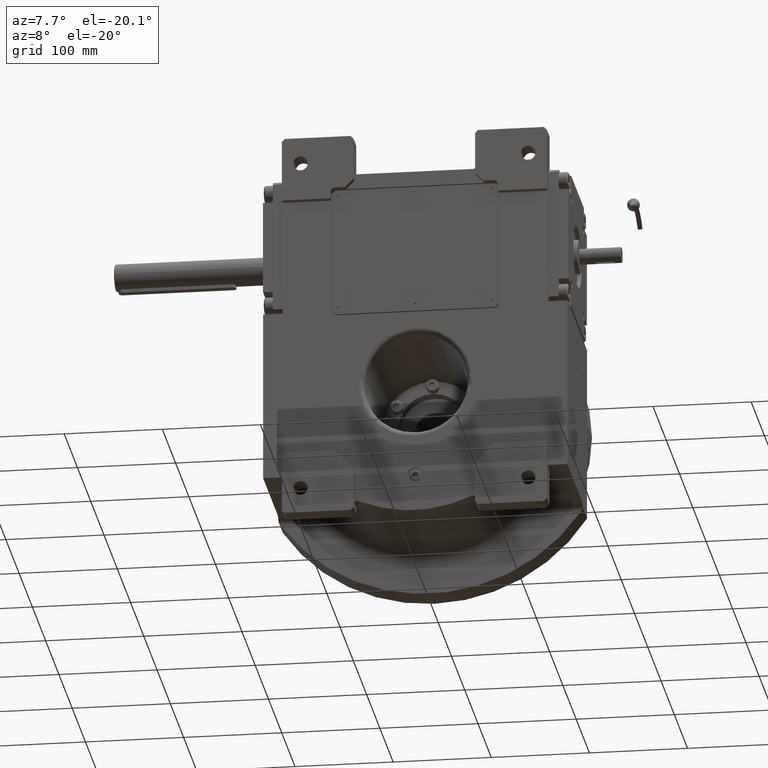
[diagram: clean part render]
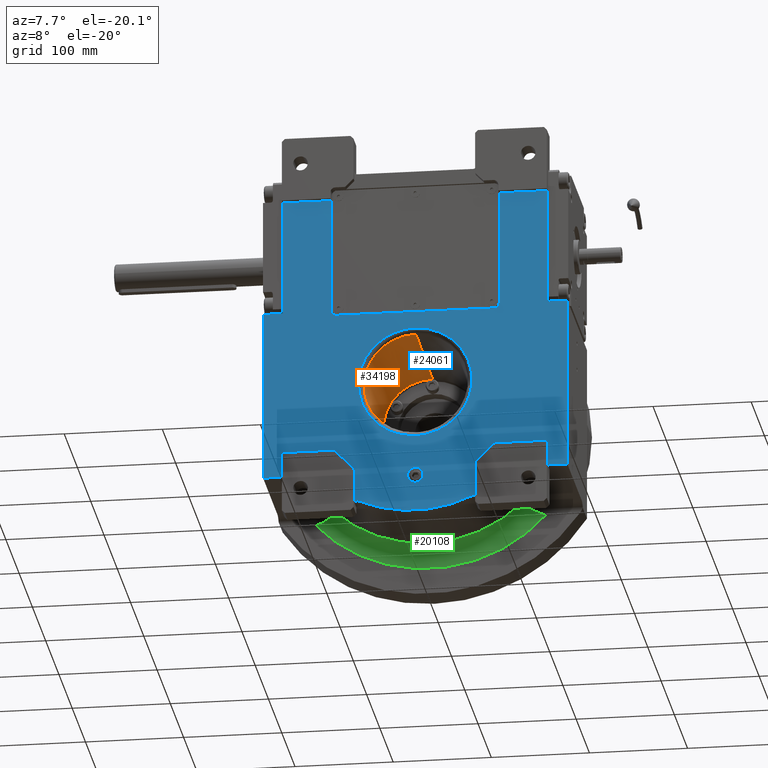
[diagram: same view with three faces highlighted in distinct colors, each labeled with its STEP entity id]
A machine part, auxiliary view with three faces highlighted in distinct colors.
Their STEP definitions:

[orange] entity #34198 — the highlighted conical surface has half-angle 1.292 deg.
#4337 = CONICAL_SURFACE ( 'NONE', #13443, 1.000000000000000000, 0.02255256665030591981 ) ;
#7349 = LINE ( 'NONE', #57273, #31564 ) ;
#7745 = DIRECTION ( 'NONE',  ( 2.310691404686464099E-08, 0.9999999999999997780, 1.490116125507999888E-08 ) ) ;
#9723 = DIRECTION ( 'NONE',  ( 1.997138262492154581E-08, 0.9999999999999997780, 6.123233971614108296E-17 ) ) ;
#11579 = LINE ( 'NONE', #44753, #12443 ) ;
#12443 = VECTOR ( 'NONE', #17629, 1000.000000000000114 ) ;
#13443 = AXIS2_PLACEMENT_3D ( 'NONE', #37893, #42215, #21476 ) ;
#14703 = DIRECTION ( 'NONE',  ( 0.9817544653963818924, -1.960699399857663348E-08, -0.1901530164742704643 ) ) ;
#17629 = DIRECTION ( 'NONE',  ( -2.761658737181604074E-18, 0.9997457016474147196, 0.02255065492437784494 ) ) ;
#19004 = CARTESIAN_POINT ( 'NONE',  ( 3.083076751974459965E-08, 57.06765196477320501, -2.539431900768300017E-15 ) ) ;
#20079 = VERTEX_POINT ( 'NONE', #52684 ) ;
#20783 = CARTESIAN_POINT ( 'NONE',  ( 3.366158563859759886E-11, -68.11275327462200835, -52.88976135205919604 ) ) ;
#21476 = DIRECTION ( 'NONE',  ( 0.000000000000000000, 0.000000000000000000, 1.000000000000000000 ) ) ;
#24636 = AXIS2_PLACEMENT_3D ( 'NONE', #19004, #9723, #14703 ) ;
#28530 = CARTESIAN_POINT ( 'NONE',  ( 5.632922360699180090E-12, 57.06765196477320501, -50.06614318876450653 ) ) ;
#28907 = AXIS2_PLACEMENT_3D ( 'NONE', #39856, #7745, #55915 ) ;
#31564 = VECTOR ( 'NONE', #45852, 1000.000000000000114 ) ;
#32275 = VERTEX_POINT ( 'NONE', #28530 ) ;
#34198 = ADVANCED_FACE ( 'NONE', ( #58996 ), #4337, .F. ) ;
#37893 = CARTESIAN_POINT ( 'NONE',  ( 0.000000000000000000, 2232.333333333314840, -3.962844522719785252E-13 ) ) ;
#39856 = CARTESIAN_POINT ( 'NONE',  ( 5.180066373969149615E-08, -68.11275406274060629, 4.736386318413870025E-15 ) ) ;
#42215 = DIRECTION ( 'NONE',  ( 0.000000000000000000, -1.000000000000000000, 1.836909530733564901E-16 ) ) ;
#42311 = EDGE_CURVE ( 'NONE', #53313, #20079, #49447, .T. ) ;
#44725 = EDGE_CURVE ( 'NONE', #32275, #65969, #58851, .T. ) ;
#44753 = CARTESIAN_POINT ( 'NONE',  ( 6.477127694746659705E-15, -68.11275327462179519, -52.88976135205919604 ) ) ;
#45852 = DIRECTION ( 'NONE',  ( 5.523317474363207377E-18, 0.9997457016474147196, -0.02255065492437819882 ) ) ;
#47369 = ORIENTED_EDGE ( 'NONE', *, *, #51372, .T. ) ;
#47437 = EDGE_CURVE ( 'NONE', #20079, #65969, #7349, .T. ) ;
#49447 = CIRCLE ( 'NONE', #28907, 52.88976140256119152 ) ;
#51372 = EDGE_CURVE ( 'NONE', #53313, #32275, #11579, .T. ) ;
#51479 = ORIENTED_EDGE ( 'NONE', *, *, #42311, .F. ) ;
#52684 = CARTESIAN_POINT ( 'NONE',  ( -3.366447261396295104E-11, -68.11275327462200835, 52.88976135205919604 ) ) ;
#53313 = VERTEX_POINT ( 'NONE', #20783 ) ;
#55915 = DIRECTION ( 'NONE',  ( 0.9882587347805640299, -2.055886669902873894E-08, -0.1527896368538074756 ) ) ;
#56234 = ORIENTED_EDGE ( 'NONE', *, *, #44725, .T. ) ;
#57273 = CARTESIAN_POINT ( 'NONE',  ( -1.295425538949331941E-14, -68.11275327462179519, 52.88976135205919604 ) ) ;
#58851 = CIRCLE ( 'NONE', #24636, 50.06614321695211345 ) ;
#58996 = FACE_OUTER_BOUND ( 'NONE', #65522, .T. ) ;
#61161 = CARTESIAN_POINT ( 'NONE',  ( -5.647091595521470526E-12, 57.06765196477320501, 50.06614318876450653 ) ) ;
#65476 = ORIENTED_EDGE ( 'NONE', *, *, #47437, .F. ) ;
#65522 = EDGE_LOOP ( 'NONE', ( #47369, #56234, #65476, #51479 ) ) ;
#65969 = VERTEX_POINT ( 'NONE', #61161 ) ;

[blue] entity #24061 — the highlighted planar face has unit normal (0, 1, 0).
#316 = ORIENTED_EDGE ( 'NONE', *, *, #39565, .F. ) ;
#1454 = EDGE_CURVE ( 'NONE', #54642, #3305, #50904, .T. ) ;
#1904 = CARTESIAN_POINT ( 'NONE',  ( -82.00000000000000000, -73.00000000000000000, -72.00000000000000000 ) ) ;
#2041 = AXIS2_PLACEMENT_3D ( 'NONE', #25438, #24385, #68991 ) ;
#2134 = CARTESIAN_POINT ( 'NONE',  ( 1.116299612869330063E-12, -73.00000000000000000, -57.88848986029439914 ) ) ;
#2320 =( BOUNDED_CURVE ( )  B_SPLINE_CURVE ( 3, ( #17370, #61602, #23416, #50539 ),
 .UNSPECIFIED., .F., .F. ) 
 B_SPLINE_CURVE_WITH_KNOTS ( ( 4, 4 ),
 ( 1.417576403733056045, 4.559165537837738036 ),
 .UNSPECIFIED. ) 
 CURVE ( )  GEOMETRIC_REPRESENTATION_ITEM ( )  RATIONAL_B_SPLINE_CURVE ( ( 1.000000000000000000, 0.3333345064950371528, 0.3333345064950371528, 1.000000000000000000 ) ) 
 REPRESENTATION_ITEM ( '' )  );
#2342 = EDGE_CURVE ( 'NONE', #21245, #59011, #28674, .T. ) ;
#2590 = CARTESIAN_POINT ( 'NONE',  ( -1.115322681495329805E-12, -73.00000000000000000, 57.88848986029439914 ) ) ;
#2649 = CARTESIAN_POINT ( 'NONE',  ( 62.00000000000000000, -73.00000000000000000, -128.0624847486569990 ) ) ;
#2673 = CARTESIAN_POINT ( 'NONE',  ( 0.000000000000000000, -73.00000000000000000, -100.0000000000000000 ) ) ;
#2783 = FACE_BOUND ( 'NONE', #59628, .T. ) ;
#3305 = VERTEX_POINT ( 'NONE', #5544 ) ;
#3505 = CARTESIAN_POINT ( 'NONE',  ( -82.00000000000000000, -73.00000000000000000, -72.00000000000000000 ) ) ;
#3707 = CARTESIAN_POINT ( 'NONE',  ( -155.0000000000000000, -73.00000000000000000, 80.00000000000000000 ) ) ;
#3957 = DIRECTION ( 'NONE',  ( 0.000000000000000000, -1.000000000000000000, 0.000000000000000000 ) ) ;
#4322 = VERTEX_POINT ( 'NONE', #38539 ) ;
#4339 = CARTESIAN_POINT ( 'NONE',  ( 155.0000000000000000, -73.00000000000000000, -96.00000000000000000 ) ) ;
#4388 = EDGE_CURVE ( 'NONE', #24433, #61838, #23187, .T. ) ;
#4520 = CARTESIAN_POINT ( 'NONE',  ( 135.0000000000000000, -73.00000000000000000, 199.0000000000000000 ) ) ;
#4981 = EDGE_CURVE ( 'NONE', #40654, #62499, #13378, .T. ) ;
#5185 = CARTESIAN_POINT ( 'NONE',  ( 62.00000000000000000, -73.00000000000000000, -92.00000000000000000 ) ) ;
#5544 = CARTESIAN_POINT ( 'NONE',  ( 85.50000000000000000, -73.00000000000000000, 80.50000000000000000 ) ) ;
#5645 = LINE ( 'NONE', #6365, #23725 ) ;
#6289 = CARTESIAN_POINT ( 'NONE',  ( -80.50000000000000000, -73.00000000000000000, 75.50000000000000000 ) ) ;
#6365 = CARTESIAN_POINT ( 'NONE',  ( 135.0000000000000000, -73.00000000000000000, -96.00000000000000000 ) ) ;
#6510 = ORIENTED_EDGE ( 'NONE', *, *, #26546, .F. ) ;
#7523 = CARTESIAN_POINT ( 'NONE',  ( -62.00000000000000000, -73.00000000000000000, -92.00000000000000000 ) ) ;
#8178 = ORIENTED_EDGE ( 'NONE', *, *, #14185, .F. ) ;
#8287 = DIRECTION ( 'NONE',  ( 0.000000000000000000, 0.000000000000000000, -1.000000000000000000 ) ) ;
#8381 = DIRECTION ( 'NONE',  ( 0.000000000000000000, -1.000000000000000000, 0.000000000000000000 ) ) ;
#8500 = CARTESIAN_POINT ( 'NONE',  ( 0.000000000000000000, -73.00000000000000000, 0.000000000000000000 ) ) ;
#9113 = VERTEX_POINT ( 'NONE', #51078 ) ;
#9139 = DIRECTION ( 'NONE',  ( 0.000000000000000000, 0.000000000000000000, 1.000000000000000000 ) ) ;
#9231 = VERTEX_POINT ( 'NONE', #56093 ) ;
#9553 = VECTOR ( 'NONE', #35826, 1000.000000000000000 ) ;
#9869 = LINE ( 'NONE', #42673, #61905 ) ;
#9977 = LINE ( 'NONE', #21696, #37942 ) ;
#10098 = AXIS2_PLACEMENT_3D ( 'NONE', #8500, #68060, #62723 ) ;
#10106 = LINE ( 'NONE', #48613, #24017 ) ;
#10619 = LINE ( 'NONE', #25957, #41227 ) ;
#11719 = DIRECTION ( 'NONE',  ( 0.000000000000000000, 0.000000000000000000, 1.000000000000000000 ) ) ;
#11926 = CIRCLE ( 'NONE', #15330, 8.000000000000000000 ) ;
#11954 = VERTEX_POINT ( 'NONE', #49788 ) ;
#12172 = DIRECTION ( 'NONE',  ( -0.7071067811865474617, 0.000000000000000000, 0.7071067811865474617 ) ) ;
#12350 = CARTESIAN_POINT ( 'NONE',  ( -59.00000000000000000, -73.00000000000000000, -128.0624847486569990 ) ) ;
#12549 = VERTEX_POINT ( 'NONE', #64193 ) ;
#12700 = DIRECTION ( 'NONE',  ( -4.736951571734100373E-15, 1.000000000000000000, 8.657947283301611559E-15 ) ) ;
#12938 = VECTOR ( 'NONE', #39517, 1000.000000000000000 ) ;
#13362 = DIRECTION ( 'NONE',  ( 1.000000000000000000, 0.000000000000000000, 0.000000000000000000 ) ) ;
#13378 = LINE ( 'NONE', #13718, #48970 ) ;
#13595 = VECTOR ( 'NONE', #58615, 1000.000000000000000 ) ;
#13642 = CARTESIAN_POINT ( 'NONE',  ( 1.116299612869330063E-12, -73.00000000000000000, -57.88848986029439914 ) ) ;
#13660 = CIRCLE ( 'NONE', #22760, 5.000000000000004441 ) ;
#13718 = CARTESIAN_POINT ( 'NONE',  ( 82.00000000000000000, -73.00000000000000000, -72.00000000000000000 ) ) ;
#13767 = EDGE_CURVE ( 'NONE', #66988, #11954, #11926, .T. ) ;
#13773 = ORIENTED_EDGE ( 'NONE', *, *, #4981, .F. ) ;
#14185 = EDGE_CURVE ( 'NONE', #59011, #17187, #67864, .T. ) ;
#14329 = ORIENTED_EDGE ( 'NONE', *, *, #1454, .F. ) ;
#14366 = EDGE_CURVE ( 'NONE', #18171, #41974, #5645, .T. ) ;
#14573 = DIRECTION ( 'NONE',  ( 0.000000000000000000, 0.000000000000000000, 1.000000000000000000 ) ) ;
#14657 = ORIENTED_EDGE ( 'NONE', *, *, #15462, .T. ) ;
#14765 = VECTOR ( 'NONE', #17854, 1000.000000000000000 ) ;
#15273 = VERTEX_POINT ( 'NONE', #69716 ) ;
#15330 = AXIS2_PLACEMENT_3D ( 'NONE', #2673, #8381, #46895 ) ;
#15443 = VERTEX_POINT ( 'NONE', #1904 ) ;
#15462 = EDGE_CURVE ( 'NONE', #12549, #37439, #30010, .T. ) ;
#15587 = EDGE_CURVE ( 'NONE', #41264, #15273, #43225, .T. ) ;
#15728 = EDGE_CURVE ( 'NONE', #17893, #15443, #49628, .T. ) ;
#16578 = CARTESIAN_POINT ( 'NONE',  ( -8.000000000000000000, -73.00000000000000000, -100.0000000000000000 ) ) ;
#16588 = ORIENTED_EDGE ( 'NONE', *, *, #20226, .F. ) ;
#16971 = LINE ( 'NONE', #6289, #24201 ) ;
#17036 = VERTEX_POINT ( 'NONE', #23576 ) ;
#17187 = VERTEX_POINT ( 'NONE', #50194 ) ;
#17370 = CARTESIAN_POINT ( 'NONE',  ( 1.116299612869330063E-12, -73.00000000000000000, -57.88848986029439914 ) ) ;
#17545 = ORIENTED_EDGE ( 'NONE', *, *, #2342, .F. ) ;
#17754 = CARTESIAN_POINT ( 'NONE',  ( 62.00000000000000000, -73.00000000000000000, -92.00000000000000000 ) ) ;
#17854 = DIRECTION ( 'NONE',  ( 3.229739708000455480E-16, 0.000000000000000000, -1.000000000000000000 ) ) ;
#17893 = VERTEX_POINT ( 'NONE', #35836 ) ;
#18171 = VERTEX_POINT ( 'NONE', #52754 ) ;
#18624 = EDGE_LOOP ( 'NONE', ( #16588, #42236, #8178, #17545, #48660, #20190, #6510, #316, #50798, #22979, #33809, #40814, #39155, #22038, #64551, #26038, #13773, #37829, #50094, #30146, #29499, #44851, #55334, #49934, #30174, #14329 ) ) ;
#20001 = CARTESIAN_POINT ( 'NONE',  ( -155.0000000000000000, -73.00000000000000000, 80.00000000000000000 ) ) ;
#20058 = EDGE_CURVE ( 'NONE', #15273, #34024, #47690, .T. ) ;
#20103 = DIRECTION ( 'NONE',  ( 0.000000000000000000, 0.000000000000000000, 1.000000000000000000 ) ) ;
#20190 = ORIENTED_EDGE ( 'NONE', *, *, #55928, .F. ) ;
#20226 = EDGE_CURVE ( 'NONE', #9113, #54642, #16971, .T. ) ;
#21245 = VERTEX_POINT ( 'NONE', #65938 ) ;
#21696 = CARTESIAN_POINT ( 'NONE',  ( -135.0000000000000000, -73.00000000000000000, -96.00000000000000000 ) ) ;
#22038 = ORIENTED_EDGE ( 'NONE', *, *, #58854, .T. ) ;
#22760 = AXIS2_PLACEMENT_3D ( 'NONE', #42470, #3957, #26728 ) ;
#22827 = DIRECTION ( 'NONE',  ( -1.000000000000000000, 0.000000000000000000, 0.000000000000000000 ) ) ;
#22979 = ORIENTED_EDGE ( 'NONE', *, *, #50317, .F. ) ;
#23187 = LINE ( 'NONE', #50662, #14765 ) ;
#23416 = CARTESIAN_POINT ( 'NONE',  ( -115.7767661625582463, -73.00000000000000000, 57.88834748044401834 ) ) ;
#23576 = CARTESIAN_POINT ( 'NONE',  ( 57.74468085106380499, -73.00000000000000000, -125.3377510306004012 ) ) ;
#23725 = VECTOR ( 'NONE', #11719, 1000.000000000000000 ) ;
#23818 = AXIS2_PLACEMENT_3D ( 'NONE', #12350, #12700, #24083 ) ;
#24017 = VECTOR ( 'NONE', #20103, 1000.000000000000000 ) ;
#24061 = ADVANCED_FACE ( 'NONE', ( #51655, #2783, #24520 ), #46313, .F. ) ;
#24083 = DIRECTION ( 'NONE',  ( -1.000000000000000000, -4.625929269271481378E-15, -9.251858538542962756E-15 ) ) ;
#24201 = VECTOR ( 'NONE', #49797, 1000.000000000000000 ) ;
#24350 = EDGE_CURVE ( 'NONE', #4322, #67942, #64820, .T. ) ;
#24382 = VECTOR ( 'NONE', #22827, 1000.000000000000000 ) ;
#24385 = DIRECTION ( 'NONE',  ( 0.000000000000000000, -1.000000000000000000, 0.000000000000000000 ) ) ;
#24433 = VERTEX_POINT ( 'NONE', #29425 ) ;
#24520 = FACE_OUTER_BOUND ( 'NONE', #18624, .T. ) ;
#24678 = DIRECTION ( 'NONE',  ( -1.000000000000000000, 0.000000000000000000, 0.000000000000000000 ) ) ;
#25341 = DIRECTION ( 'NONE',  ( 0.000000000000000000, 0.000000000000000000, -1.000000000000000000 ) ) ;
#25380 = VECTOR ( 'NONE', #13362, 1000.000000000000000 ) ;
#25438 = CARTESIAN_POINT ( 'NONE',  ( 0.000000000000000000, -73.00000000000000000, -100.0000000000000000 ) ) ;
#25489 = CARTESIAN_POINT ( 'NONE',  ( 59.00000000000000000, -73.00000000000000000, -128.0624847486569990 ) ) ;
#25552 = ORIENTED_EDGE ( 'NONE', *, *, #62289, .T. ) ;
#25957 = CARTESIAN_POINT ( 'NONE',  ( 85.50000000000000000, -73.00000000000000000, 80.50000000000000000 ) ) ;
#26038 = ORIENTED_EDGE ( 'NONE', *, *, #29297, .F. ) ;
#26546 = EDGE_CURVE ( 'NONE', #9231, #61516, #10106, .T. ) ;
#26728 = DIRECTION ( 'NONE',  ( -1.000000000000000000, 0.000000000000000000, -2.775557561562888984E-15 ) ) ;
#26730 = CARTESIAN_POINT ( 'NONE',  ( 155.0000000000000000, -73.00000000000000000, -96.00000000000000000 ) ) ;
#27836 = AXIS2_PLACEMENT_3D ( 'NONE', #39444, #61214, #45161 ) ;
#28224 = CIRCLE ( 'NONE', #2041, 8.000000000000000000 ) ;
#28674 = LINE ( 'NONE', #62244, #25380 ) ;
#29297 = EDGE_CURVE ( 'NONE', #62499, #55783, #50203, .T. ) ;
#29425 = CARTESIAN_POINT ( 'NONE',  ( 155.0000000000000000, -73.00000000000000000, 80.00000000000000000 ) ) ;
#29499 = ORIENTED_EDGE ( 'NONE', *, *, #4388, .F. ) ;
#29646 = CARTESIAN_POINT ( 'NONE',  ( 135.0000000000000000, -73.00000000000000000, 80.00000000000000000 ) ) ;
#29981 = CARTESIAN_POINT ( 'NONE',  ( -135.0000000000000000, -73.00000000000000000, -72.00000000000000000 ) ) ;
#30010 =( BOUNDED_CURVE ( )  B_SPLINE_CURVE ( 3, ( #2590, #46469, #35054, #13642 ),
 .UNSPECIFIED., .F., .F. ) 
 B_SPLINE_CURVE_WITH_KNOTS ( ( 4, 4 ),
 ( 4.559169057132199221, 7.700758191236885430 ),
 .UNSPECIFIED. ) 
 CURVE ( )  GEOMETRIC_REPRESENTATION_ITEM ( )  RATIONAL_B_SPLINE_CURVE ( ( 1.000000000000000000, 0.3333345064950357095, 0.3333345064950357095, 1.000000000000000000 ) ) 
 REPRESENTATION_ITEM ( '' )  );
#30146 = ORIENTED_EDGE ( 'NONE', *, *, #68872, .F. ) ;
#30174 = ORIENTED_EDGE ( 'NONE', *, *, #54189, .F. ) ;
#30248 = CARTESIAN_POINT ( 'NONE',  ( 80.50000000000000000, -73.00000000000000000, 80.50000000000000000 ) ) ;
#30415 = VECTOR ( 'NONE', #24678, 1000.000000000000000 ) ;
#30466 = CARTESIAN_POINT ( 'NONE',  ( -85.50000000000000000, -73.00000000000000000, 199.0000000000000000 ) ) ;
#30587 = LINE ( 'NONE', #3505, #47788 ) ;
#31422 = LINE ( 'NONE', #41091, #36533 ) ;
#32704 = CARTESIAN_POINT ( 'NONE',  ( -135.0000000000000000, -73.00000000000000000, -96.00000000000000000 ) ) ;
#33809 = ORIENTED_EDGE ( 'NONE', *, *, #15728, .F. ) ;
#34024 = VERTEX_POINT ( 'NONE', #57584 ) ;
#34549 = EDGE_CURVE ( 'NONE', #63290, #54332, #46072, .T. ) ;
#35054 = CARTESIAN_POINT ( 'NONE',  ( 115.7767661625584452, -73.00000000000000000, -57.88834748044417466 ) ) ;
#35263 = DIRECTION ( 'NONE',  ( 0.000000000000000000, -1.000000000000000000, 0.000000000000000000 ) ) ;
#35514 = EDGE_CURVE ( 'NONE', #11954, #66988, #28224, .T. ) ;
#35826 = DIRECTION ( 'NONE',  ( 1.000000000000000000, 0.000000000000000000, 0.000000000000000000 ) ) ;
#35836 = CARTESIAN_POINT ( 'NONE',  ( -62.00000000000000000, -73.00000000000000000, -92.00000000000000000 ) ) ;
#36533 = VECTOR ( 'NONE', #62502, 1000.000000000000000 ) ;
#37193 = EDGE_CURVE ( 'NONE', #4322, #17893, #31422, .T. ) ;
#37439 = VERTEX_POINT ( 'NONE', #2134 ) ;
#37761 = DIRECTION ( 'NONE',  ( -1.000000000000000000, 0.000000000000000000, 0.000000000000000000 ) ) ;
#37829 = ORIENTED_EDGE ( 'NONE', *, *, #59021, .F. ) ;
#37942 = VECTOR ( 'NONE', #37761, 1000.000000000000000 ) ;
#38378 = AXIS2_PLACEMENT_3D ( 'NONE', #30248, #35263, #52034 ) ;
#38539 = CARTESIAN_POINT ( 'NONE',  ( -62.00000000000000000, -73.00000000000000000, -128.0624847486569990 ) ) ;
#39155 = ORIENTED_EDGE ( 'NONE', *, *, #24350, .T. ) ;
#39293 = CARTESIAN_POINT ( 'NONE',  ( 82.00000000000000000, -73.00000000000000000, -72.00000000000000000 ) ) ;
#39444 = CARTESIAN_POINT ( 'NONE',  ( 0.000000000000000000, -73.00000000000000000, -1.705302565824239941E-13 ) ) ;
#39517 = DIRECTION ( 'NONE',  ( 0.000000000000000000, 0.000000000000000000, -1.000000000000000000 ) ) ;
#39565 = EDGE_CURVE ( 'NONE', #54332, #9231, #9977, .T. ) ;
#40654 = VERTEX_POINT ( 'NONE', #39293 ) ;
#40814 = ORIENTED_EDGE ( 'NONE', *, *, #37193, .F. ) ;
#41091 = CARTESIAN_POINT ( 'NONE',  ( -62.00000000000000000, -73.00000000000000000, -128.0624847486569990 ) ) ;
#41227 = VECTOR ( 'NONE', #14573, 1000.000000000000000 ) ;
#41264 = VERTEX_POINT ( 'NONE', #59136 ) ;
#41594 = ORIENTED_EDGE ( 'NONE', *, *, #35514, .F. ) ;
#41974 = VERTEX_POINT ( 'NONE', #50079 ) ;
#42236 = ORIENTED_EDGE ( 'NONE', *, *, #52341, .F. ) ;
#42470 = CARTESIAN_POINT ( 'NONE',  ( -80.50000000000000000, -73.00000000000000000, 80.50000000000000000 ) ) ;
#42673 = CARTESIAN_POINT ( 'NONE',  ( -135.0000000000000000, -73.00000000000000000, 80.00000000000000000 ) ) ;
#42703 = DIRECTION ( 'NONE',  ( 0.000000000000000000, 0.000000000000000000, -1.000000000000000000 ) ) ;
#43225 = LINE ( 'NONE', #53909, #13595 ) ;
#44800 = ORIENTED_EDGE ( 'NONE', *, *, #13767, .F. ) ;
#44851 = ORIENTED_EDGE ( 'NONE', *, *, #68613, .F. ) ;
#44945 = CIRCLE ( 'NONE', #27836, 138.0000000000000000 ) ;
#45161 = DIRECTION ( 'NONE',  ( -0.4184397163120575636, 0.000000000000000000, -0.9082445726855100654 ) ) ;
#46072 = LINE ( 'NONE', #29981, #46399 ) ;
#46313 = PLANE ( 'NONE',  #10098 ) ;
#46399 = VECTOR ( 'NONE', #25341, 1000.000000000000000 ) ;
#46469 = CARTESIAN_POINT ( 'NONE',  ( 115.7767661625561999, -73.00000000000000000, 57.88822476622656410 ) ) ;
#46895 = DIRECTION ( 'NONE',  ( -1.000000000000000000, 0.000000000000000000, 1.734723475976807094E-15 ) ) ;
#47621 = EDGE_CURVE ( 'NONE', #17036, #55783, #66909, .T. ) ;
#47690 = LINE ( 'NONE', #4520, #51733 ) ;
#47788 = VECTOR ( 'NONE', #52362, 1000.000000000000000 ) ;
#48613 = CARTESIAN_POINT ( 'NONE',  ( -155.0000000000000000, -73.00000000000000000, -96.00000000000000000 ) ) ;
#48660 = ORIENTED_EDGE ( 'NONE', *, *, #55547, .F. ) ;
#48970 = VECTOR ( 'NONE', #62948, 1000.000000000000114 ) ;
#49628 = LINE ( 'NONE', #7523, #52339 ) ;
#49788 = CARTESIAN_POINT ( 'NONE',  ( 8.000000000000000000, -73.00000000000000000, -100.0000000000000000 ) ) ;
#49797 = DIRECTION ( 'NONE',  ( 1.000000000000000000, 0.000000000000000000, 0.000000000000000000 ) ) ;
#49934 = ORIENTED_EDGE ( 'NONE', *, *, #15587, .F. ) ;
#50079 = CARTESIAN_POINT ( 'NONE',  ( 135.0000000000000000, -73.00000000000000000, -72.00000000000000000 ) ) ;
#50094 = ORIENTED_EDGE ( 'NONE', *, *, #14366, .F. ) ;
#50194 = CARTESIAN_POINT ( 'NONE',  ( -85.50000000000000000, -73.00000000000000000, 80.50000000000000000 ) ) ;
#50203 = LINE ( 'NONE', #17754, #12938 ) ;
#50317 = EDGE_CURVE ( 'NONE', #15443, #63290, #30587, .T. ) ;
#50539 = CARTESIAN_POINT ( 'NONE',  ( -1.115322681495329805E-12, -73.00000000000000000, 57.88848986029439914 ) ) ;
#50662 = CARTESIAN_POINT ( 'NONE',  ( 155.0000000000000000, -73.00000000000000000, 80.00000000000000000 ) ) ;
#50798 = ORIENTED_EDGE ( 'NONE', *, *, #34549, .F. ) ;
#50904 = CIRCLE ( 'NONE', #38378, 5.000000000000004441 ) ;
#51078 = CARTESIAN_POINT ( 'NONE',  ( -80.50000000000000000, -73.00000000000000000, 75.50000000000000000 ) ) ;
#51655 = FACE_BOUND ( 'NONE', #64847, .T. ) ;
#51733 = VECTOR ( 'NONE', #42703, 1000.000000000000000 ) ;
#52034 = DIRECTION ( 'NONE',  ( -8.326672684688666165E-15, 0.000000000000000000, -1.000000000000000000 ) ) ;
#52242 = LINE ( 'NONE', #63679, #24382 ) ;
#52339 = VECTOR ( 'NONE', #12172, 1000.000000000000114 ) ;
#52341 = EDGE_CURVE ( 'NONE', #17187, #9113, #13660, .T. ) ;
#52362 = DIRECTION ( 'NONE',  ( -1.000000000000000000, 0.000000000000000000, 0.000000000000000000 ) ) ;
#52754 = CARTESIAN_POINT ( 'NONE',  ( 135.0000000000000000, -73.00000000000000000, -96.00000000000000000 ) ) ;
#53909 = CARTESIAN_POINT ( 'NONE',  ( 85.50000000000000000, -73.00000000000000000, 199.0000000000000000 ) ) ;
#54189 = EDGE_CURVE ( 'NONE', #3305, #41264, #10619, .T. ) ;
#54332 = VERTEX_POINT ( 'NONE', #32704 ) ;
#54642 = VERTEX_POINT ( 'NONE', #63728 ) ;
#55334 = ORIENTED_EDGE ( 'NONE', *, *, #20058, .F. ) ;
#55400 = DIRECTION ( 'NONE',  ( 1.000000000000000000, 0.000000000000000000, 0.000000000000000000 ) ) ;
#55547 = EDGE_CURVE ( 'NONE', #65296, #21245, #9869, .T. ) ;
#55783 = VERTEX_POINT ( 'NONE', #2649 ) ;
#55928 = EDGE_CURVE ( 'NONE', #61516, #65296, #57597, .T. ) ;
#56093 = CARTESIAN_POINT ( 'NONE',  ( -155.0000000000000000, -73.00000000000000000, -96.00000000000000000 ) ) ;
#56586 = VECTOR ( 'NONE', #55400, 1000.000000000000000 ) ;
#57164 = LINE ( 'NONE', #4339, #30415 ) ;
#57584 = CARTESIAN_POINT ( 'NONE',  ( 135.0000000000000000, -73.00000000000000000, 80.00000000000000000 ) ) ;
#57597 = LINE ( 'NONE', #3707, #9553 ) ;
#58615 = DIRECTION ( 'NONE',  ( 1.000000000000000000, 0.000000000000000000, 0.000000000000000000 ) ) ;
#58854 = EDGE_CURVE ( 'NONE', #67942, #17036, #44945, .T. ) ;
#59011 = VERTEX_POINT ( 'NONE', #30466 ) ;
#59021 = EDGE_CURVE ( 'NONE', #41974, #40654, #52242, .T. ) ;
#59052 = DIRECTION ( 'NONE',  ( -0.4184397163120606722, 0.000000000000000000, 0.9082445726855087331 ) ) ;
#59134 = CARTESIAN_POINT ( 'NONE',  ( -135.0000000000000000, -73.00000000000000000, 80.00000000000000000 ) ) ;
#59136 = CARTESIAN_POINT ( 'NONE',  ( 85.50000000000000000, -73.00000000000000000, 199.0000000000000000 ) ) ;
#59628 = EDGE_LOOP ( 'NONE', ( #41594, #44800 ) ) ;
#60048 = AXIS2_PLACEMENT_3D ( 'NONE', #25489, #64039, #59052 ) ;
#60203 = VECTOR ( 'NONE', #8287, 1000.000000000000000 ) ;
#61214 = DIRECTION ( 'NONE',  ( 0.000000000000000000, -1.000000000000000000, 0.000000000000000000 ) ) ;
#61516 = VERTEX_POINT ( 'NONE', #20001 ) ;
#61602 = CARTESIAN_POINT ( 'NONE',  ( -115.7767661625559867, -73.00000000000000000, -57.88822476622628699 ) ) ;
#61838 = VERTEX_POINT ( 'NONE', #26730 ) ;
#61905 = VECTOR ( 'NONE', #9139, 1000.000000000000000 ) ;
#62244 = CARTESIAN_POINT ( 'NONE',  ( -135.0000000000000000, -73.00000000000000000, 199.0000000000000000 ) ) ;
#62289 = EDGE_CURVE ( 'NONE', #37439, #12549, #2320, .T. ) ;
#62499 = VERTEX_POINT ( 'NONE', #5185 ) ;
#62502 = DIRECTION ( 'NONE',  ( 0.000000000000000000, 0.000000000000000000, 1.000000000000000000 ) ) ;
#62723 = DIRECTION ( 'NONE',  ( 1.000000000000000000, 0.000000000000000000, 0.000000000000000000 ) ) ;
#62948 = DIRECTION ( 'NONE',  ( -0.7071067811865474617, 0.000000000000000000, -0.7071067811865474617 ) ) ;
#63227 = CARTESIAN_POINT ( 'NONE',  ( -85.50000000000000000, -73.00000000000000000, 199.0000000000000000 ) ) ;
#63290 = VERTEX_POINT ( 'NONE', #69497 ) ;
#63679 = CARTESIAN_POINT ( 'NONE',  ( 135.0000000000000000, -73.00000000000000000, -72.00000000000000000 ) ) ;
#63728 = CARTESIAN_POINT ( 'NONE',  ( 80.50000000000000000, -73.00000000000000000, 75.50000000000000000 ) ) ;
#64039 = DIRECTION ( 'NONE',  ( 0.000000000000000000, 1.000000000000000000, 0.000000000000000000 ) ) ;
#64193 = CARTESIAN_POINT ( 'NONE',  ( -1.115322681495329805E-12, -73.00000000000000000, 57.88848986029439914 ) ) ;
#64447 = CARTESIAN_POINT ( 'NONE',  ( -57.74468085106390447, -73.00000000000000000, -125.3377510306004012 ) ) ;
#64551 = ORIENTED_EDGE ( 'NONE', *, *, #47621, .T. ) ;
#64820 = CIRCLE ( 'NONE', #23818, 3.000000000000002665 ) ;
#64847 = EDGE_LOOP ( 'NONE', ( #25552, #14657 ) ) ;
#65296 = VERTEX_POINT ( 'NONE', #59134 ) ;
#65938 = CARTESIAN_POINT ( 'NONE',  ( -135.0000000000000000, -73.00000000000000000, 199.0000000000000000 ) ) ;
#66909 = CIRCLE ( 'NONE', #60048, 3.000000000000012879 ) ;
#66988 = VERTEX_POINT ( 'NONE', #16578 ) ;
#67860 = LINE ( 'NONE', #29646, #56586 ) ;
#67864 = LINE ( 'NONE', #63227, #60203 ) ;
#67942 = VERTEX_POINT ( 'NONE', #64447 ) ;
#68060 = DIRECTION ( 'NONE',  ( -0.000000000000000000, 1.000000000000000000, 0.000000000000000000 ) ) ;
#68613 = EDGE_CURVE ( 'NONE', #34024, #24433, #67860, .T. ) ;
#68872 = EDGE_CURVE ( 'NONE', #61838, #18171, #57164, .T. ) ;
#68991 = DIRECTION ( 'NONE',  ( 1.000000000000000000, 0.000000000000000000, -1.734723475976807094E-15 ) ) ;
#69497 = CARTESIAN_POINT ( 'NONE',  ( -135.0000000000000000, -73.00000000000000000, -72.00000000000000000 ) ) ;
#69716 = CARTESIAN_POINT ( 'NONE',  ( 135.0000000000000000, -73.00000000000000000, 199.0000000000000000 ) ) ;

[green] entity #20108 — the highlighted toroidal blend (fillet) surface has major radius 158 mm and minor (blend) radius 20 mm.
#71 = CARTESIAN_POINT ( 'NONE',  ( -113.2270883732561799, 44.64139532762662554, -104.7205948346391580 ) ) ;
#434 = CARTESIAN_POINT ( 'NONE',  ( -113.2014659484088526, 44.63667040653874096, -104.7121690570024697 ) ) ;
#693 = CARTESIAN_POINT ( 'NONE',  ( -117.1660380023439956, 45.00001431931600138, -105.9999239592122109 ) ) ;
#706 = CARTESIAN_POINT ( 'NONE',  ( 97.36157097504504065, 31.29695299417163667, -99.22571455668132501 ) ) ;
#790 = CARTESIAN_POINT ( 'NONE',  ( -117.1660380023439956, 45.00001431931600138, -105.9999239592122109 ) ) ;
#1056 = CARTESIAN_POINT ( 'NONE',  ( 105.9055068370100230, 41.85610961708399458, -102.2571069029231410 ) ) ;
#1406 = CARTESIAN_POINT ( 'NONE',  ( 98.00384888286747298, 32.90804153405046151, -99.45709908681564571 ) ) ;
#1551 = CARTESIAN_POINT ( 'NONE',  ( 43.59869364544065462, 45.00000000000000000, -152.4011103777230005 ) ) ;
#2114 = CARTESIAN_POINT ( 'NONE',  ( 102.1879067513015258, 38.93036966924995568, -100.9561944668075455 ) ) ;
#3113 = DIRECTION ( 'NONE',  ( -6.789570679155330615E-15, -1.000000000000000000, 2.340198913247644897E-14 ) ) ;
#3332 = CARTESIAN_POINT ( 'NONE',  ( -102.6416497146342408, 39.36405972610243964, -101.1170677917055087 ) ) ;
#4057 = CARTESIAN_POINT ( 'NONE',  ( 96.30723760260589472, 24.99999990761120117, -98.83797943607669367 ) ) ;
#4389 = CARTESIAN_POINT ( 'NONE',  ( -97.91255337353909738, 32.70133367099210631, -99.42366482389860494 ) ) ;
#4713 = VERTEX_POINT ( 'NONE', #35923 ) ;
#4727 = CARTESIAN_POINT ( 'NONE',  ( -100.7926875676756566, 37.41839457156896742, -100.4603088552798908 ) ) ;
#5086 = CARTESIAN_POINT ( 'NONE',  ( -113.2388050366955667, 44.64354608652779177, -104.7244472051020097 ) ) ;
#5434 = CARTESIAN_POINT ( 'NONE',  ( -109.4570425004065584, 43.58796948114684966, -103.4653075323048057 ) ) ;
#5781 = CARTESIAN_POINT ( 'NONE',  ( 96.30723760260589472, 24.99999990761120117, -98.83797943607669367 ) ) ;
#6422 = CARTESIAN_POINT ( 'NONE',  ( 109.3745464157829872, 43.55663680806992488, -103.4372806364187625 ) ) ;
#6503 = CARTESIAN_POINT ( 'NONE',  ( -112.4607002535011873, 44.48710846717178669, -104.4678539401486432 ) ) ;
#6765 = CARTESIAN_POINT ( 'NONE',  ( 117.1665481270144085, 45.00000000000000000, -106.0000000000000000 ) ) ;
#6895 = CARTESIAN_POINT ( 'NONE',  ( -4.611055492802900184E-05, 45.00000000000000000, -158.5100177325210211 ) ) ;
#7117 = CARTESIAN_POINT ( 'NONE',  ( 101.3949774993228203, 38.10441288670152460, -100.6755621131664640 ) ) ;
#7473 = CARTESIAN_POINT ( 'NONE',  ( 98.02029075397882707, 32.94461909195858595, -99.46305897812415253 ) ) ;
#7812 = CARTESIAN_POINT ( 'NONE',  ( 109.4247943805015808, 43.57593919126923510, -103.4542186149024303 ) ) ;
#10094 = CARTESIAN_POINT ( 'NONE',  ( -100.3652794098986902, 36.87972709017024897, -100.3072398612967220 ) ) ;
#10437 = CARTESIAN_POINT ( 'NONE',  ( -109.4655760309758534, 43.59121322662022635, -103.4681832982696505 ) ) ;
#10794 = CARTESIAN_POINT ( 'NONE',  ( -109.3181507463841768, 43.53466286722584755, -103.4184730461046655 ) ) ;
#11548 = CARTESIAN_POINT ( 'NONE',  ( 112.2734842588863842, 45.00000000000000000, -111.4014792453958052 ) ) ;
#11643 = EDGE_CURVE ( 'NONE', #37175, #25121, #17533, .T. ) ;
#11852 = CARTESIAN_POINT ( 'NONE',  ( -108.5878809751568355, 43.23598813457415702, -103.1712700995225731 ) ) ;
#11902 = CARTESIAN_POINT ( 'NONE',  ( -101.7965497933509909, 45.00000000000000000, -121.4959109195396110 ) ) ;
#12126 = CARTESIAN_POINT ( 'NONE',  ( 107.9131611571321798, 42.93445073039974602, -102.9430406042122996 ) ) ;
#12457 = CARTESIAN_POINT ( 'NONE',  ( 102.7545780126843340, 39.46825219890278191, -101.1562525515439432 ) ) ;
#13174 = CARTESIAN_POINT ( 'NONE',  ( 102.7579227797914854, 39.47131357591320011, -101.1574313033593882 ) ) ;
#14073 = ORIENTED_EDGE ( 'NONE', *, *, #25357, .T. ) ;
#14680 = B_SPLINE_CURVE_WITH_KNOTS ( 'NONE', 3,
 ( #15501, #28264, #11902, #50054, #56122, #51110, #61830, #6895, #60418, #1551, #38641, #33269, #33642, #11548, #40061 ),
 .UNSPECIFIED., .F., .F.,
 ( 4, 1, 1, 1, 1, 1, 1, 1, 1, 1, 1, 1, 4 ),
 ( 0.000000000000000000, 0.08230548578115680358, 0.1657096187028465062, 0.2495666647837894991, 0.3333347921405555025, 0.4167731287220570180, 0.4999985279742490407, 0.5832235921521119471, 0.6666606947103590475, 0.7504274457011980148, 0.8342845243559869894, 0.9176906032219021014, 1.000000000000000000 ),
 .UNSPECIFIED. ) ;
#15097 = CARTESIAN_POINT ( 'NONE',  ( -96.45153004134235175, 27.70310141048831198, -98.88764133614009211 ) ) ;
#15439 = CARTESIAN_POINT ( 'NONE',  ( -96.30722393658518854, 24.99999992571344976, -98.83796549704690904 ) ) ;
#15501 = CARTESIAN_POINT ( 'NONE',  ( -117.1660380023439956, 45.00001431931600138, -105.9999239592122109 ) ) ;
#15788 = CARTESIAN_POINT ( 'NONE',  ( -102.5255579008334479, 39.25560902335374891, -101.0761116096675352 ) ) ;
#16264 = CARTESIAN_POINT ( 'NONE',  ( -2.057655180072804513E-28, 25.00000000000000000, 0.000000000000000000 ) ) ;
#16490 = CARTESIAN_POINT ( 'NONE',  ( -109.4712663826515495, 43.59337483259150048, -103.4701008455638771 ) ) ;
#16841 = CARTESIAN_POINT ( 'NONE',  ( -114.1474023438828596, 44.80939919492819001, -105.0231329103317108 ) ) ;
#17468 = CARTESIAN_POINT ( 'NONE',  ( 100.2350872385880791, 36.71107100005902879, -100.2633408774202195 ) ) ;
#17533 = CIRCLE ( 'NONE', #52869, 138.0000000000000853 ) ;
#17550 = CARTESIAN_POINT ( 'NONE',  ( -108.8488826586078488, 43.34740058216166858, -103.2598516227548657 ) ) ;
#17827 = CARTESIAN_POINT ( 'NONE',  ( 102.5048850568784786, 39.23635417113926138, -101.0681975133973225 ) ) ;
#18175 = CARTESIAN_POINT ( 'NONE',  ( 115.2789584378532908, 44.95770843063282030, -105.3909224794406327 ) ) ;
#18523 = CARTESIAN_POINT ( 'NONE',  ( 97.67883289305895289, 32.14176207053703394, -99.33972559280917380 ) ) ;
#20108 = ADVANCED_FACE ( 'NONE', ( #22662 ), #57295, .F. ) ;
#20241 = ORIENTED_EDGE ( 'NONE', *, *, #38805, .T. ) ;
#21136 = CARTESIAN_POINT ( 'NONE',  ( -102.1052124814145685, 38.84748452432424415, -100.9274324292788094 ) ) ;
#21816 = CARTESIAN_POINT ( 'NONE',  ( -103.5604638868912701, 40.20595371232317206, -101.4407642183008420 ) ) ;
#22110 = B_SPLINE_CURVE_WITH_KNOTS ( 'NONE', 3,
 ( #4057, #42580, #25793, #40290, #34566, #706, #39228, #18523, #34213, #34920, #22461, #55633, #1406, #7473, #62051, #23162, #44951, #28494, #39928, #17468, #56702, #7117, #28842, #66694, #2114, #49932, #17827, #39589, #28137, #60998, #56356, #61355, #12457, #13174, #45634, #23849, #1056, #67379, #55996, #12126, #29194, #50638, #33503, #33868, #6422, #7812, #29527, #61700, #65985, #67037, #18175, #66337, #6765 ),
 .UNSPECIFIED., .F., .F.,
 ( 4, 2, 2, 2, 2, 1, 1, 1, 1, 2, 2, 2, 2, 2, 2, 1, 1, 1, 1, 1, 2, 2, 2, 2, 2, 1, 1, 2, 2, 2, 2, 4 ),
 ( 0.000000000000000000, 0.1249999999998392397, 0.1874999999997588596, 0.2187499999997192801, 0.2343749999996997124, 0.2421874999996898037, 0.2460937499996850297, 0.2480468749996828648, 0.2490234374996819489, 0.2495117187496817546, 0.2499999999996815325, 0.3749999999995941025, 0.4374999999995501376, 0.4687499999995277111, 0.4843749999995164979, 0.4921874999995102251, 0.4960937499995068944, 0.4980468749995055622, 0.4990234374995043964, 0.4995117187495035638, 0.4997558593745026756, 0.4999999999995017319, 0.6249999999996301847, 0.6874999999996945776, 0.7187499999997267741, 0.7343749999997423172, 0.7421874999997500888, 0.7460937499997538636, 0.7499999999997576383, 0.8124999999998182565, 0.8749999999998788747, 1.000000000000000000 ),
 .UNSPECIFIED. ) ;
#22164 = B_SPLINE_CURVE_WITH_KNOTS ( 'NONE', 3,
 ( #15439, #53256, #15097, #69324, #52193, #42209, #53588, #63972, #36850, #4389, #42565, #26113, #47891, #64666, #69657, #64328, #58987, #10094, #4727, #26459, #48245, #21136, #42911, #15788, #3332, #27874, #38245, #32521, #33218, #66070, #21816, #27507, #50010, #54295, #32872, #27158, #11852, #17550, #44669, #10794, #26820, #43253, #5434, #10437, #16490, #32165, #59327, #28212, #53940, #48940, #22539, #6503, #22876, #38599, #49299, #49665, #434, #71, #5086, #16841, #43614, #22182, #43971, #790 ),
 .UNSPECIFIED., .F., .F.,
 ( 4, 2, 2, 2, 1, 1, 1, 1, 2, 2, 2, 2, 2, 1, 1, 1, 1, 1, 2, 2, 2, 2, 2, 1, 1, 1, 1, 1, 1, 2, 2, 2, 2, 2, 1, 1, 1, 2, 2, 2, 4 ),
 ( 0.000000000000000000, 0.1250000000000111300, 0.1875000000000168754, 0.2187500000000195677, 0.2343750000000205391, 0.2421875000000207612, 0.2460937500000210110, 0.2480468750000210110, 0.2490234375000210942, 0.2500000000000211497, 0.3750000000000347500, 0.4375000000000414113, 0.4687500000000452416, 0.4843750000000466294, 0.4921875000000472955, 0.4960937500000481282, 0.4980468750000489053, 0.4990234375000496825, 0.4995117187500495715, 0.5000000000000494049, 0.6250000000001078027, 0.6875000000001370015, 0.7187500000001518785, 0.7343750000001594280, 0.7421875000001629807, 0.7460937500001643130, 0.7480468750001647571, 0.7490234375001647571, 0.7495117187501649791, 0.7497558593751655343, 0.7500000000001662004, 0.8125000000001361133, 0.8437500000001215694, 0.8593750000001149081, 0.8671875000001115774, 0.8710937500001101341, 0.8730468750001093570, 0.8740234375001090239, 0.8750000000001086908, 0.9375000000000544009, 1.000000000000000000 ),
 .UNSPECIFIED. ) ;
#22182 = CARTESIAN_POINT ( 'NONE',  ( -116.2352257174750463, 44.99001509439585789, -105.7012472922178006 ) ) ;
#22461 = CARTESIAN_POINT ( 'NONE',  ( 97.90664548853494864, 32.68827471051651656, -99.42190602882016037 ) ) ;
#22539 = CARTESIAN_POINT ( 'NONE',  ( -112.2734746109593260, 44.44468254698182363, -104.4058678920740988 ) ) ;
#22662 = FACE_OUTER_BOUND ( 'NONE', #50095, .T. ) ;
#22876 = CARTESIAN_POINT ( 'NONE',  ( -112.7507830709306091, 44.54855493280744128, -104.5636799672140143 ) ) ;
#23162 = CARTESIAN_POINT ( 'NONE',  ( 98.03207687276184856, 32.97073713156943597, -99.46733246904339865 ) ) ;
#23849 = CARTESIAN_POINT ( 'NONE',  ( 104.2463131879213307, 40.76393802617366191, -101.6826970027681085 ) ) ;
#25121 = VERTEX_POINT ( 'NONE', #5781 ) ;
#25357 = EDGE_CURVE ( 'NONE', #37175, #49960, #22164, .T. ) ;
#25793 = CARTESIAN_POINT ( 'NONE',  ( 96.42904774952934588, 27.58533141082950735, -98.88715296331103843 ) ) ;
#26113 = CARTESIAN_POINT ( 'NONE',  ( -98.00546406152352574, 32.91113758827333413, -99.45746077517848960 ) ) ;
#26459 = CARTESIAN_POINT ( 'NONE',  ( -101.4886153696198647, 38.20591153641694859, -100.7084430121944365 ) ) ;
#26820 = CARTESIAN_POINT ( 'NONE',  ( -109.3974056362629312, 43.56519796802493971, -103.4452044021865618 ) ) ;
#27158 = CARTESIAN_POINT ( 'NONE',  ( -108.0740276487307767, 43.00863225675112034, -102.9965373334888028 ) ) ;
#27507 = CARTESIAN_POINT ( 'NONE',  ( -104.5087876018555448, 40.95577502017587790, -101.7701399989986726 ) ) ;
#27874 = CARTESIAN_POINT ( 'NONE',  ( -102.7000760039274923, 39.41809226182505910, -101.1376651757015992 ) ) ;
#28137 = CARTESIAN_POINT ( 'NONE',  ( 102.6950527371998163, 39.41357277141199233, -101.1352714509385038 ) ) ;
#28212 = CARTESIAN_POINT ( 'NONE',  ( -110.4507057160706438, 43.94872069333644049, -103.7991858523617452 ) ) ;
#28264 = CARTESIAN_POINT ( 'NONE',  ( -112.2729284226672064, 45.00000000000000000, -111.4014722087630105 ) ) ;
#28494 = CARTESIAN_POINT ( 'NONE',  ( 98.48471084682699939, 33.97079976953421721, -99.63148764706355109 ) ) ;
#28842 = CARTESIAN_POINT ( 'NONE',  ( 101.6495231024777866, 38.38138673485482855, -100.7657376625949581 ) ) ;
#29194 = CARTESIAN_POINT ( 'NONE',  ( 108.4800013347112042, 43.18941542812900281, -103.1351226245848949 ) ) ;
#29527 = CARTESIAN_POINT ( 'NONE',  ( 110.3220350555751281, 43.91652627139864506, -103.7565656085486836 ) ) ;
#32165 = CARTESIAN_POINT ( 'NONE',  ( -109.4752336681219163, 43.59488064486146897, -103.4714376798484778 ) ) ;
#32521 = CARTESIAN_POINT ( 'NONE',  ( -102.7419653505997275, 39.45660694743568797, -101.1524264426147681 ) ) ;
#32872 = CARTESIAN_POINT ( 'NONE',  ( -107.7423295384170245, 42.85102449398583957, -102.8832939820001116 ) ) ;
#33006 = DIRECTION ( 'NONE',  ( 0.000000000000000000, -1.000000000000000000, 0.000000000000000000 ) ) ;
#33218 = CARTESIAN_POINT ( 'NONE',  ( -102.7503572650319370, 39.46430266327028846, -101.1553830789643200 ) ) ;
#33269 = CARTESIAN_POINT ( 'NONE',  ( 83.96432363714549751, 45.00000000000000000, -134.4519182908271944 ) ) ;
#33503 = CARTESIAN_POINT ( 'NONE',  ( 109.1198961715385565, 43.45704474481149759, -103.3513959743997361 ) ) ;
#33642 = CARTESIAN_POINT ( 'NONE',  ( 101.7963591369399978, 45.00000000000000000, -121.4958819722340024 ) ) ;
#33868 = CARTESIAN_POINT ( 'NONE',  ( 109.2723530990759429, 43.51694133331180581, -103.4028213162863494 ) ) ;
#34213 = CARTESIAN_POINT ( 'NONE',  ( 97.74688043386996128, 32.31025036503177006, -99.36423024539772086 ) ) ;
#34566 = CARTESIAN_POINT ( 'NONE',  ( 97.02992846564075080, 30.28103333706581068, -99.10657987401545199 ) ) ;
#34920 = CARTESIAN_POINT ( 'NONE',  ( 97.85275650508563672, 32.56236914450305875, -99.40243881657917768 ) ) ;
#35923 = CARTESIAN_POINT ( 'NONE',  ( 117.1665481270144085, 45.00000000000000000, -106.0000000000000000 ) ) ;
#36850 = CARTESIAN_POINT ( 'NONE',  ( -97.79214034478044937, 32.42049839196046435, -99.37979107747185026 ) ) ;
#37175 = VERTEX_POINT ( 'NONE', #50746 ) ;
#38245 = CARTESIAN_POINT ( 'NONE',  ( -102.7293842753246480, 39.44505987403460523, -101.1479936078508217 ) ) ;
#38599 = CARTESIAN_POINT ( 'NONE',  ( -112.8981352970310326, 44.57872936801063446, -104.6123043516303426 ) ) ;
#38641 = CARTESIAN_POINT ( 'NONE',  ( 64.41571053208309650, 45.00000000000000000, -144.8384350625149750 ) ) ;
#38805 = EDGE_CURVE ( 'NONE', #49960, #4713, #14680, .T. ) ;
#39228 = CARTESIAN_POINT ( 'NONE',  ( 97.48234618482011626, 31.63550269026396577, -99.26904948111314297 ) ) ;
#39450 = DIRECTION ( 'NONE',  ( -0.7986875995212583401, 0.000000000000000000, -0.6017458918604845497 ) ) ;
#39589 = CARTESIAN_POINT ( 'NONE',  ( 102.6312996237867168, 39.35459407148432831, -101.1127928936633111 ) ) ;
#39928 = CARTESIAN_POINT ( 'NONE',  ( 99.07132607232249200, 35.05063944442410673, -99.84668655224699307 ) ) ;
#40061 = CARTESIAN_POINT ( 'NONE',  ( 117.1665481270144085, 45.00000000000000000, -106.0000000000000000 ) ) ;
#40290 = CARTESIAN_POINT ( 'NONE',  ( 96.84980827649697233, 29.60359732435895452, -99.04162677069164999 ) ) ;
#41636 = DIRECTION ( 'NONE',  ( -0.6978784504689377055, -1.201735973212917754E-14, -0.7162162162162165613 ) ) ;
#42209 = CARTESIAN_POINT ( 'NONE',  ( -97.38739292718010176, 31.36510134331906130, -99.23164404730367494 ) ) ;
#42565 = CARTESIAN_POINT ( 'NONE',  ( -97.97424618332217960, 32.84128268383337712, -99.44611099143347133 ) ) ;
#42580 = CARTESIAN_POINT ( 'NONE',  ( 96.30961973117844366, 26.25722250582394679, -98.83759602172548853 ) ) ;
#42911 = CARTESIAN_POINT ( 'NONE',  ( -102.2964152114121248, 39.03719391014137585, -100.9951587366911241 ) ) ;
#43253 = CARTESIAN_POINT ( 'NONE',  ( -109.4371449076648020, 43.58039139906387760, -103.4586012990809252 ) ) ;
#43614 = CARTESIAN_POINT ( 'NONE',  ( -114.9267522836661755, 44.89477428892062960, -105.2774722197928270 ) ) ;
#43971 = CARTESIAN_POINT ( 'NONE',  ( -116.7646410946360049, 44.99998530194281443, -105.8709790865936355 ) ) ;
#44669 = CARTESIAN_POINT ( 'NONE',  ( -109.1605355308136609, 43.47300632657120900, -103.3652613385540207 ) ) ;
#44951 = CARTESIAN_POINT ( 'NONE',  ( 98.03505203622908937, 32.97731647600386395, -99.46841138892769152 ) ) ;
#45634 = CARTESIAN_POINT ( 'NONE',  ( 103.3977546460237562, 40.05675034197459183, -101.3829155952155929 ) ) ;
#47891 = CARTESIAN_POINT ( 'NONE',  ( -98.01892274206869615, 32.94104951340082010, -99.46235204995994650 ) ) ;
#48245 = CARTESIAN_POINT ( 'NONE',  ( -101.7297215537501955, 38.46499574230020357, -100.7942339710923818 ) ) ;
#48940 = CARTESIAN_POINT ( 'NONE',  ( -111.7301272109056498, 44.31438120929762192, -104.2256781774488275 ) ) ;
#49299 = CARTESIAN_POINT ( 'NONE',  ( -113.0741043758506521, 44.61281630514807972, -104.6702653786944808 ) ) ;
#49665 = CARTESIAN_POINT ( 'NONE',  ( -113.1631049617858622, 44.62956057005464316, -104.6995521603640498 ) ) ;
#49932 = CARTESIAN_POINT ( 'NONE',  ( 102.3983983773695172, 39.13454416598305130, -101.0305906898127120 ) ) ;
#49960 = VERTEX_POINT ( 'NONE', #693 ) ;
#50010 = CARTESIAN_POINT ( 'NONE',  ( -106.1807118417980007, 42.01955951595629557, -102.3474989434262028 ) ) ;
#50054 = CARTESIAN_POINT ( 'NONE',  ( -83.96482471285699489, 45.00000000000000000, -134.4515343287771998 ) ) ;
#50095 = EDGE_LOOP ( 'NONE', ( #53019, #14073, #20241, #59002 ) ) ;
#50638 = CARTESIAN_POINT ( 'NONE',  ( 108.7699844828208597, 43.31492083898538681, -103.2332460237712013 ) ) ;
#50746 = CARTESIAN_POINT ( 'NONE',  ( -96.30722393658518854, 24.99999992571344976, -98.83796549704690904 ) ) ;
#51110 = CARTESIAN_POINT ( 'NONE',  ( -43.59914018231270205, 45.00000000000000000, -152.4009961974019802 ) ) ;
#52193 = CARTESIAN_POINT ( 'NONE',  ( -97.06297459206342637, 30.37875981429069938, -99.11244784926033446 ) ) ;
#52869 = AXIS2_PLACEMENT_3D ( 'NONE', #57337, #3113, #41636 ) ;
#53019 = ORIENTED_EDGE ( 'NONE', *, *, #11643, .F. ) ;
#53256 = CARTESIAN_POINT ( 'NONE',  ( -96.30868053554550556, 26.34585515008642886, -98.83642070424104986 ) ) ;
#53588 = CARTESIAN_POINT ( 'NONE',  ( -97.50460443159397528, 31.69185725558088507, -99.27465210942251872 ) ) ;
#53940 = CARTESIAN_POINT ( 'NONE',  ( -111.3923422199803639, 44.22351198310433773, -104.1132547796615171 ) ) ;
#54295 = CARTESIAN_POINT ( 'NONE',  ( -106.7795100371588859, 42.36370184623466884, -102.5536834389168064 ) ) ;
#55633 = CARTESIAN_POINT ( 'NONE',  ( 97.97117223922006701, 32.83484338586081464, -99.44526033932362452 ) ) ;
#55996 = CARTESIAN_POINT ( 'NONE',  ( 107.5527563214296549, 42.75924596825704072, -102.8205401285183029 ) ) ;
#56122 = CARTESIAN_POINT ( 'NONE',  ( -64.41635450183450473, 45.00000000000000000, -144.8381713325094324 ) ) ;
#56356 = CARTESIAN_POINT ( 'NONE',  ( 102.7431065449346335, 39.45774344501223396, -101.1522096567761935 ) ) ;
#56702 = CARTESIAN_POINT ( 'NONE',  ( 100.6690459606547705, 37.27067431726949565, -100.4179235864729520 ) ) ;
#57295 = TOROIDAL_SURFACE ( 'NONE', #57451, 158.0000000000000000, 20.00000000000000000 ) ;
#57337 = CARTESIAN_POINT ( 'NONE',  ( -1.421085471520200056E-14, 25.00000000000330047, 8.526512829121199706E-14 ) ) ;
#57451 = AXIS2_PLACEMENT_3D ( 'NONE', #16264, #33006, #39450 ) ;
#58987 = CARTESIAN_POINT ( 'NONE',  ( -99.18958940278133696, 35.23783606590234285, -99.88545211301371296 ) ) ;
#59002 = ORIENTED_EDGE ( 'NONE', *, *, #63020, .F. ) ;
#59327 = CARTESIAN_POINT ( 'NONE',  ( -109.9185748977876074, 43.76307598258188847, -103.6208235213127153 ) ) ;
#60418 = CARTESIAN_POINT ( 'NONE',  ( 21.98865651185845138, 45.00000000000000000, -156.9786712556644943 ) ) ;
#60998 = CARTESIAN_POINT ( 'NONE',  ( 102.7270658436678303, 39.44302597977765146, -101.1465560309166420 ) ) ;
#61355 = CARTESIAN_POINT ( 'NONE',  ( 102.7499884497114238, 39.46404896067710411, -101.1546350695295473 ) ) ;
#61700 = CARTESIAN_POINT ( 'NONE',  ( 111.1261820987919577, 44.16061954937864442, -104.0245863794300476 ) ) ;
#61830 = CARTESIAN_POINT ( 'NONE',  ( -21.98885812455705135, 45.00000000000000000, -156.9786534940434990 ) ) ;
#62051 = CARTESIAN_POINT ( 'NONE',  ( 98.02735946511637621, 32.96029053751003346, -99.46562191245601525 ) ) ;
#63020 = EDGE_CURVE ( 'NONE', #25121, #4713, #22110, .T. ) ;
#63972 = CARTESIAN_POINT ( 'NONE',  ( -97.69402759877473841, 32.17824278475688260, -99.34394788754170236 ) ) ;
#64328 = CARTESIAN_POINT ( 'NONE',  ( -98.54806655395772452, 34.10925224219861462, -99.65458556124448819 ) ) ;
#64666 = CARTESIAN_POINT ( 'NONE',  ( -98.02791288108049628, 32.96098501412838999, -99.46561891031363700 ) ) ;
#65985 = CARTESIAN_POINT ( 'NONE',  ( 112.6337903164633758, 44.53780329086850287, -104.5239396644698502 ) ) ;
#66070 = CARTESIAN_POINT ( 'NONE',  ( -102.7556243044858064, 39.46912785005818591, -101.1572386221299240 ) ) ;
#66337 = CARTESIAN_POINT ( 'NONE',  ( 116.3458202215898751, 45.00009952038519856, -105.7365312948304279 ) ) ;
#66694 = CARTESIAN_POINT ( 'NONE',  ( 102.0508725851416756, 38.79353669661188064, -100.9077352945622579 ) ) ;
#67037 = CARTESIAN_POINT ( 'NONE',  ( 113.3373850614359384, 44.67107231412343538, -104.7552860952817042 ) ) ;
#67379 = CARTESIAN_POINT ( 'NONE',  ( 106.5230779561971985, 42.22457348863358106, -102.4693920495566175 ) ) ;
#69324 = CARTESIAN_POINT ( 'NONE',  ( -96.88299641673512497, 29.71310565171039997, -99.04611361363333799 ) ) ;
#69657 = CARTESIAN_POINT ( 'NONE',  ( -98.03293628953102257, 32.97209666675917106, -99.46744407336238680 ) ) ;